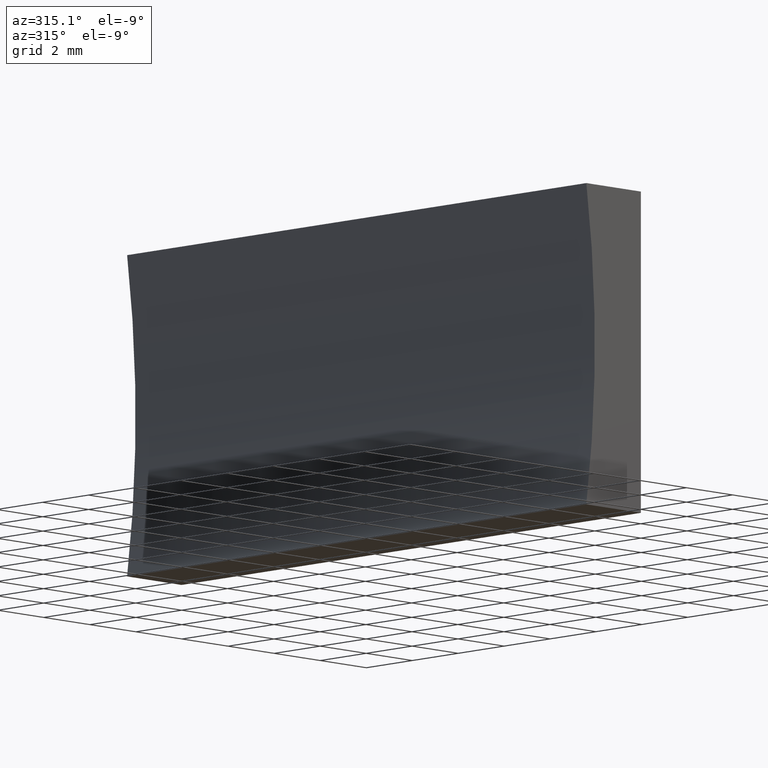
[diagram: clean part render]
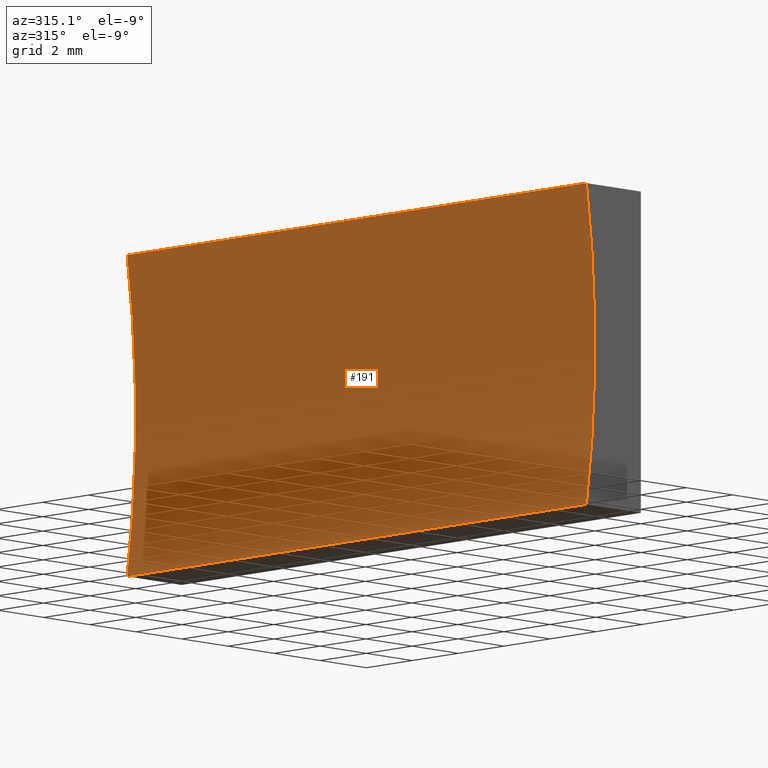
[diagram: same view with one face highlighted and labeled with its STEP entity id]
A machine part, auxiliary view. The second image highlights one B-rep face of the part: STEP entity #191.
In plain terms, the highlighted cylindrical surface (partial cylindrical patch) has radius 34.35 mm, axis along (-0, -1, -0).
Its self-contained STEP definition (entity closure, byte-faithful):
#10 = CARTESIAN_POINT ( 'NONE',  ( -2.365849282349278900, 0.0000000000000000000, 8.673617379884035500E-016 ) ) ;
#13 = FACE_OUTER_BOUND ( 'NONE', #147, .T. ) ;
#32 = ORIENTED_EDGE ( 'NONE', *, *, #84, .F. ) ;
#36 = DIRECTION ( 'NONE',  ( 0.0000000000000000000, 0.0000000000000000000, -1.000000000000000000 ) ) ;
#48 = CARTESIAN_POINT ( 'NONE',  ( -36.35000000000000100, 20.00000000000000000, 5.000000000000005300 ) ) ;
#49 = ORIENTED_EDGE ( 'NONE', *, *, #132, .F. ) ;
#50 = VERTEX_POINT ( 'NONE', #169 ) ;
#52 = CARTESIAN_POINT ( 'NONE',  ( -2.365849282349278500, 20.00000000000000000, 10.00000000000000200 ) ) ;
#58 = VERTEX_POINT ( 'NONE', #108 ) ;
#73 = DIRECTION ( 'NONE',  ( 0.0000000000000000000, 0.0000000000000000000, 1.000000000000000000 ) ) ;
#84 = EDGE_CURVE ( 'NONE', #50, #138, #89, .T. ) ;
#87 = LINE ( 'NONE', #175, #148 ) ;
#89 = LINE ( 'NONE', #52, #159 ) ;
#97 = CARTESIAN_POINT ( 'NONE',  ( -36.35000000000000100, 20.00000000000000000, 5.000000000000005300 ) ) ;
#103 = CYLINDRICAL_SURFACE ( 'NONE', #161, 34.35000000000000100 ) ;
#106 = EDGE_CURVE ( 'NONE', #58, #139, #87, .T. ) ;
#108 = CARTESIAN_POINT ( 'NONE',  ( -2.365849282349278900, 20.00000000000000000, 8.673617379884035500E-016 ) ) ;
#111 = ORIENTED_EDGE ( 'NONE', *, *, #106, .T. ) ;
#113 = DIRECTION ( 'NONE',  ( -0.0000000000000000000, -1.000000000000000000, -0.0000000000000000000 ) ) ;
#114 = DIRECTION ( 'NONE',  ( -0.0000000000000000000, -1.000000000000000000, -0.0000000000000000000 ) ) ;
#121 = DIRECTION ( 'NONE',  ( -0.0000000000000000000, -1.000000000000000000, -0.0000000000000000000 ) ) ;
#125 = CIRCLE ( 'NONE', #190, 34.35000000000000100 ) ;
#126 = DIRECTION ( 'NONE',  ( 0.0000000000000000000, 0.0000000000000000000, 1.000000000000000000 ) ) ;
#131 = CARTESIAN_POINT ( 'NONE',  ( -2.365849282349278500, 0.0000000000000000000, 10.00000000000000200 ) ) ;
#132 = EDGE_CURVE ( 'NONE', #58, #50, #203, .T. ) ;
#138 = VERTEX_POINT ( 'NONE', #131 ) ;
#139 = VERTEX_POINT ( 'NONE', #10 ) ;
#145 = DIRECTION ( 'NONE',  ( -0.0000000000000000000, -1.000000000000000000, -0.0000000000000000000 ) ) ;
#147 = EDGE_LOOP ( 'NONE', ( #170, #32, #49, #111 ) ) ;
#148 = VECTOR ( 'NONE', #145, 1000.000000000000000 ) ;
#159 = VECTOR ( 'NONE', #113, 1000.000000000000000 ) ;
#161 = AXIS2_PLACEMENT_3D ( 'NONE', #97, #114, #36 ) ;
#167 = DIRECTION ( 'NONE',  ( -0.0000000000000000000, -1.000000000000000000, -0.0000000000000000000 ) ) ;
#168 = AXIS2_PLACEMENT_3D ( 'NONE', #48, #167, #73 ) ;
#169 = CARTESIAN_POINT ( 'NONE',  ( -2.365849282349278500, 20.00000000000000000, 10.00000000000000200 ) ) ;
#170 = ORIENTED_EDGE ( 'NONE', *, *, #199, .T. ) ;
#171 = CARTESIAN_POINT ( 'NONE',  ( -36.35000000000000100, 0.0000000000000000000, 5.000000000000005300 ) ) ;
#175 = CARTESIAN_POINT ( 'NONE',  ( -2.365849282349278900, 20.00000000000000000, 8.673617379884035500E-016 ) ) ;
#190 = AXIS2_PLACEMENT_3D ( 'NONE', #171, #121, #126 ) ;
#191 = ADVANCED_FACE ( 'NONE', ( #13 ), #103, .F. ) ;
#199 = EDGE_CURVE ( 'NONE', #139, #138, #125, .T. ) ;
#203 = CIRCLE ( 'NONE', #168, 34.35000000000000100 ) ;